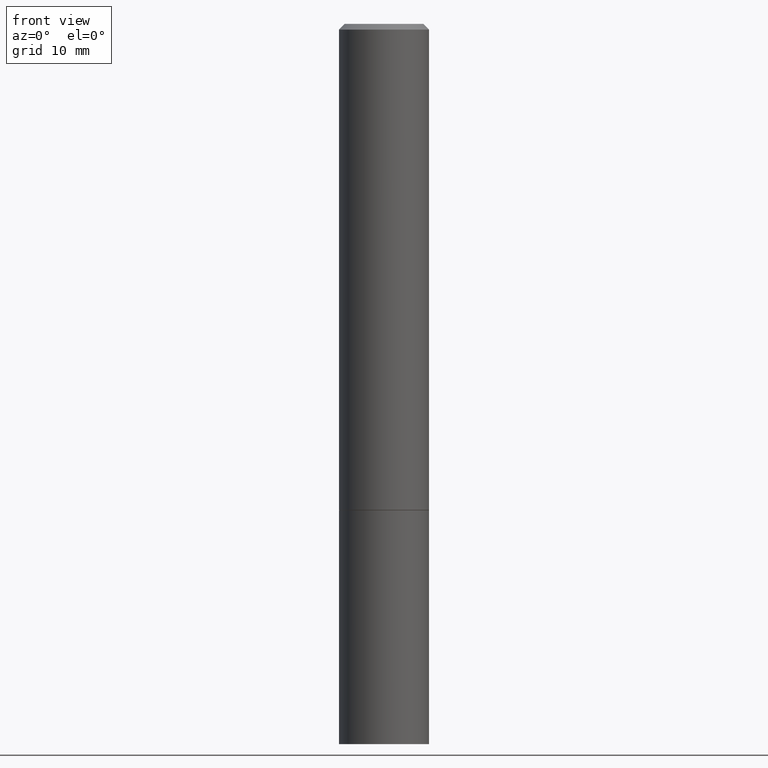
[diagram: clean part render]
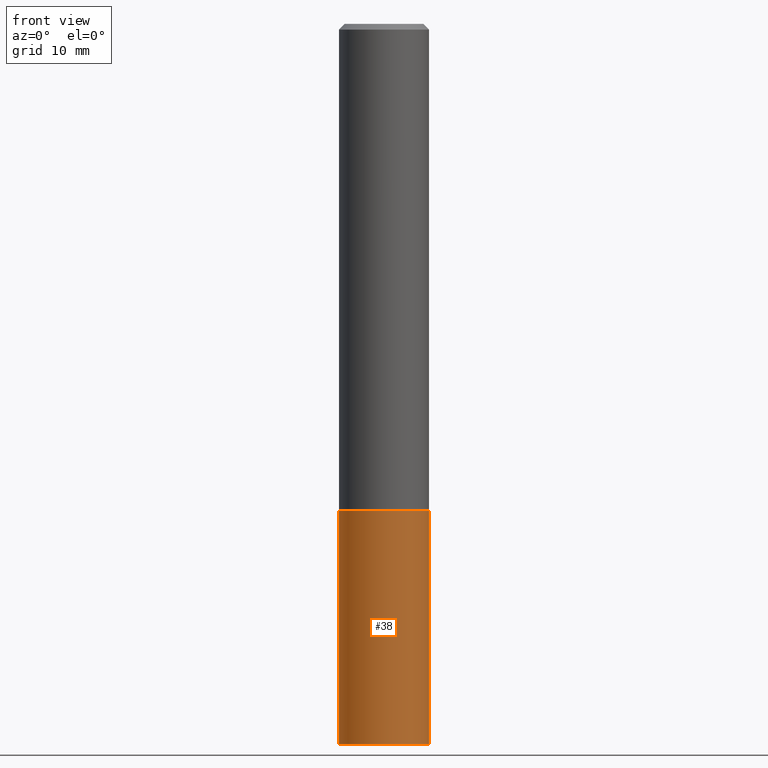
[diagram: same view with one face highlighted and labeled with its STEP entity id]
A machine part, front view. The second image highlights one B-rep face of the part: STEP entity #38.
In plain terms, the highlighted cylindrical surface (partial cylindrical patch) has radius 3.9688 mm, axis along (-0, 0, 1).
Its self-contained STEP definition (entity closure, byte-faithful):
#1 = CARTESIAN_POINT ( 'NONE',  ( 4.127951344840510809E-29, -5.893620499967230340E-15, -1.688000000000000167 ) ) ;
#3 = CARTESIAN_POINT ( 'NONE',  ( 6.113672015462842613E-29, -8.728703347107864943E-15, -2.500000000000000000 ) ) ;
#16 = VECTOR ( 'NONE', #360, 39.37007874015748143 ) ;
#20 = CARTESIAN_POINT ( 'NONE',  ( 0.1562500000000000000, -9.819791265496344905E-15, -2.500000000000000000 ) ) ;
#23 = AXIS2_PLACEMENT_3D ( 'NONE', #3, #260, #318 ) ;
#33 = EDGE_CURVE ( 'NONE', #296, #74, #51, .T. ) ;
#38 = ADVANCED_FACE ( 'NONE', ( #334 ), #105, .T. ) ;
#41 = VECTOR ( 'NONE', #357, 39.37007874015748143 ) ;
#51 = LINE ( 'NONE', #275, #41 ) ;
#67 = EDGE_CURVE ( 'NONE', #74, #160, #77, .T. ) ;
#74 = VERTEX_POINT ( 'NONE', #139 ) ;
#77 = CIRCLE ( 'NONE', #121, 0.1562500000000000000 ) ;
#83 = CARTESIAN_POINT ( 'NONE',  ( -0.1562500000000000000, -6.200938898912389918E-15, -2.500000000000000000 ) ) ;
#96 = ORIENTED_EDGE ( 'NONE', *, *, #67, .F. ) ;
#105 = CYLINDRICAL_SURFACE ( 'NONE', #255, 0.1562500000000000000 ) ;
#108 = EDGE_CURVE ( 'NONE', #349, #160, #227, .T. ) ;
#117 = DIRECTION ( 'NONE',  ( -2.445468806185136597E-29, 3.491481338843145583E-15, 1.000000000000000000 ) ) ;
#121 = AXIS2_PLACEMENT_3D ( 'NONE', #1, #252, #311 ) ;
#139 = CARTESIAN_POINT ( 'NONE',  ( -0.1562500000000000000, -6.200938898912389918E-15, -1.688000000000000167 ) ) ;
#143 = DIRECTION ( 'NONE',  ( 1.000000000000000000, -6.982962677686266711E-15, 4.876176775795936353E-29 ) ) ;
#156 = ORIENTED_EDGE ( 'NONE', *, *, #195, .T. ) ;
#160 = VERTEX_POINT ( 'NONE', #200 ) ;
#183 = CIRCLE ( 'NONE', #23, 0.1562500000000000000 ) ;
#195 = EDGE_CURVE ( 'NONE', #296, #349, #183, .T. ) ;
#200 = CARTESIAN_POINT ( 'NONE',  ( 0.1562500000000000000, -6.984708418355709513E-15, -1.688000000000000167 ) ) ;
#227 = LINE ( 'NONE', #303, #16 ) ;
#242 = ORIENTED_EDGE ( 'NONE', *, *, #108, .T. ) ;
#252 = DIRECTION ( 'NONE',  ( -2.445468806185136597E-29, 3.491481338843145583E-15, 1.000000000000000000 ) ) ;
#255 = AXIS2_PLACEMENT_3D ( 'NONE', #332, #117, #143 ) ;
#260 = DIRECTION ( 'NONE',  ( -2.445468806185136597E-29, 3.491481338843145583E-15, 1.000000000000000000 ) ) ;
#266 = ORIENTED_EDGE ( 'NONE', *, *, #33, .F. ) ;
#272 = EDGE_LOOP ( 'NONE', ( #266, #156, #242, #96 ) ) ;
#275 = CARTESIAN_POINT ( 'NONE',  ( -0.1562500000000000000, 1.110223024625156540E-15, -7.685836078523291160E-30 ) ) ;
#296 = VERTEX_POINT ( 'NONE', #83 ) ;
#303 = CARTESIAN_POINT ( 'NONE',  ( 0.1562500000000000000, -1.091087918388479174E-15, 7.619026212181150377E-30 ) ) ;
#311 = DIRECTION ( 'NONE',  ( 1.000000000000000000, -6.982962677686269077E-15, 0.000000000000000000 ) ) ;
#318 = DIRECTION ( 'NONE',  ( 1.000000000000000000, -6.982962677686269077E-15, 0.000000000000000000 ) ) ;
#332 = CARTESIAN_POINT ( 'NONE',  ( 0.000000000000000000, 0.000000000000000000, 0.000000000000000000 ) ) ;
#334 = FACE_OUTER_BOUND ( 'NONE', #272, .T. ) ;
#349 = VERTEX_POINT ( 'NONE', #20 ) ;
#357 = DIRECTION ( 'NONE',  ( -2.445468806185136877E-29, 3.491481338843145188E-15, 1.000000000000000000 ) ) ;
#360 = DIRECTION ( 'NONE',  ( -2.445468806185136877E-29, 3.491481338843145188E-15, 1.000000000000000000 ) ) ;